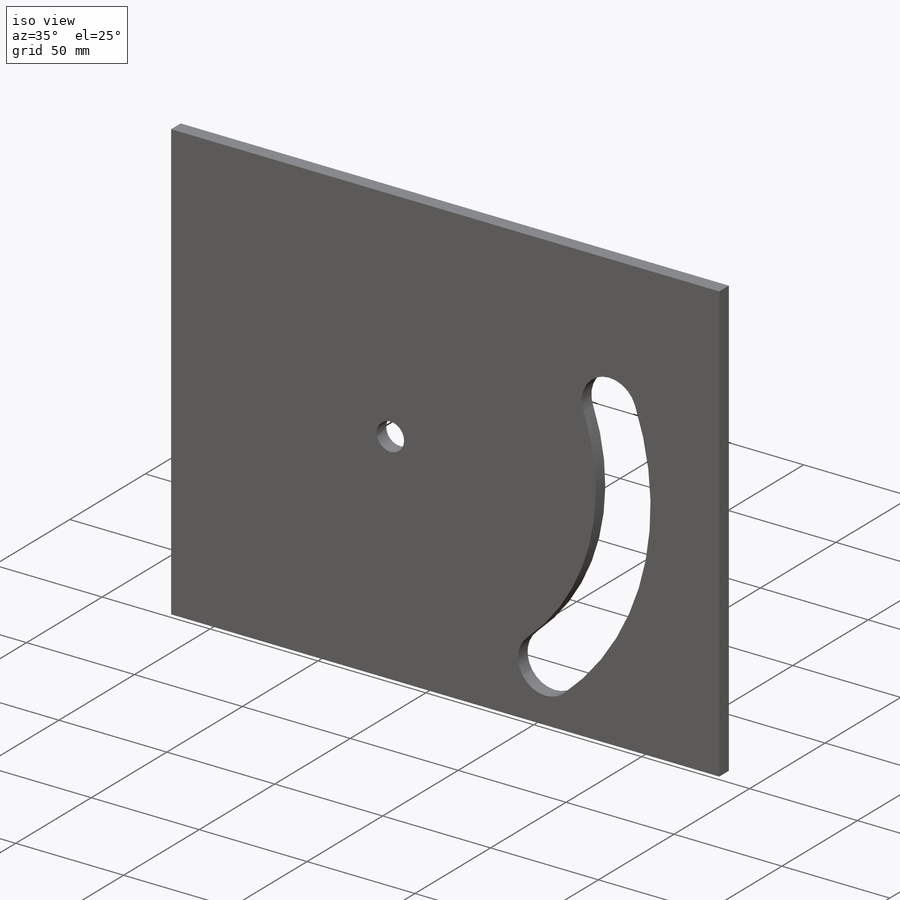
[diagram: iso view]
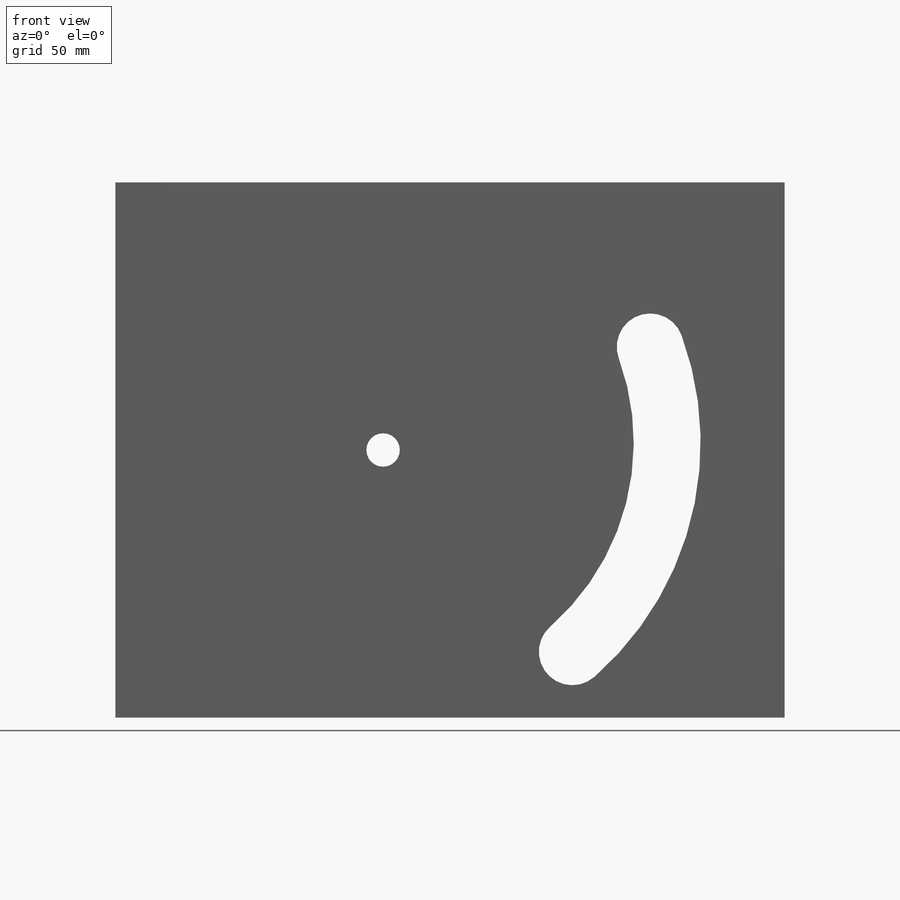
[diagram: front view]
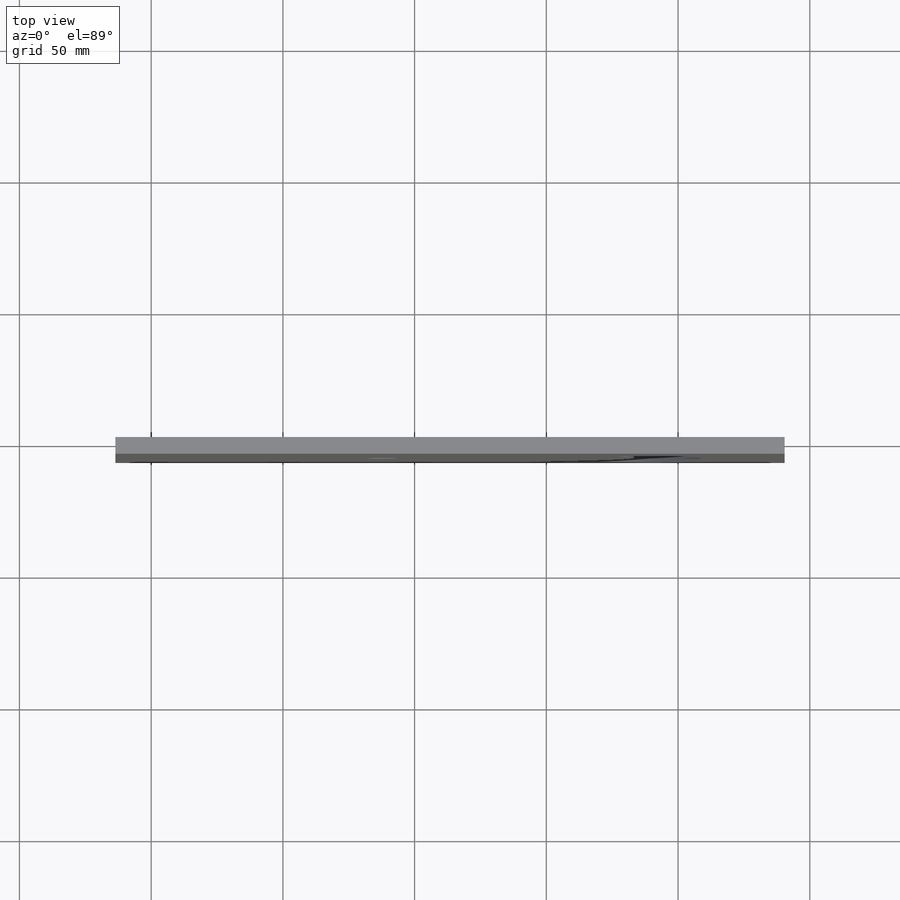
[diagram: top view]
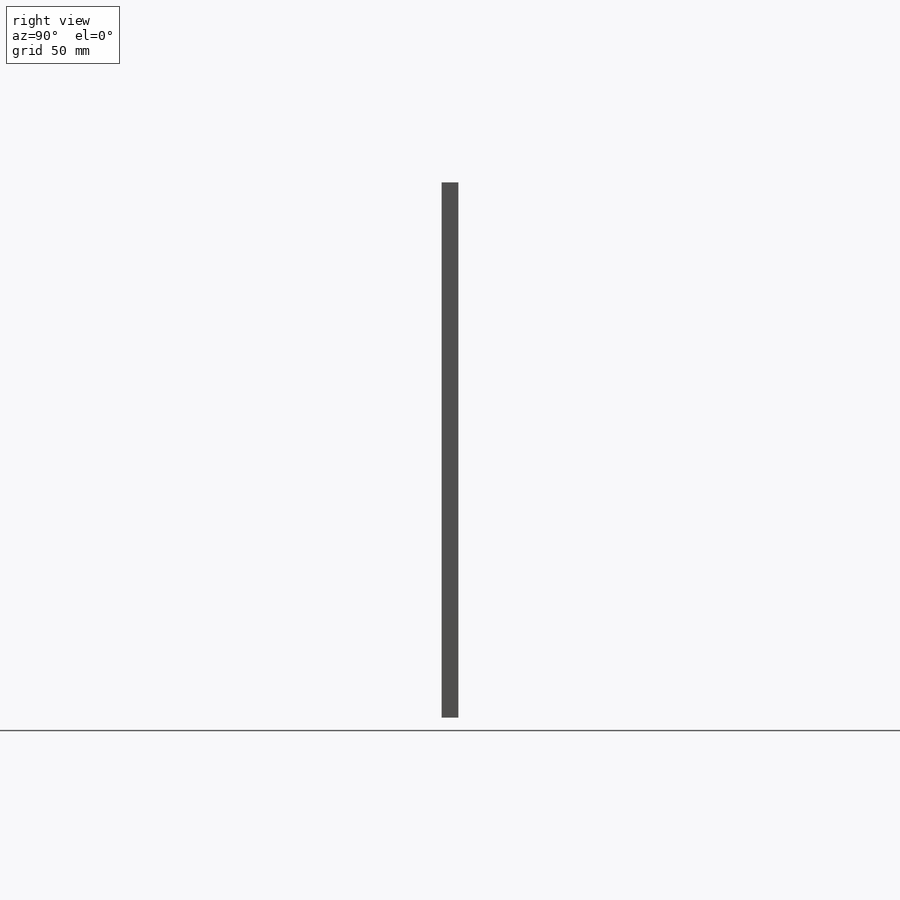
[diagram: right view]
SOLIDWORKS PART (.sldprt)
format: sldprt  version: not decoded by parser v0  size: 192,000 bytes
history: native  units: mm
features: sketch x3, cut_extrude x2, material x1, extrude x1, fillet x1 (+13 scaffold rows collapsed)
feature tree (21):
  scaffold x13  (default folders/planes/origin — collapsed)
  material  "Material <not specified>"
  sketch  "Sketch1"  dims[c1.D2=9.5758mm c1.D4=12.7mm c1.D8=12.7mm c1.D1=~154.475222mm c2.D2=~230.033754mm c2.D1=101.6mm c3.D2=~89.94775mm c3.D3=~18.110708mm c3.D5=101.6mm c3.D6=254.0mm c3.D7=101.6mm]
  extrude  "Boss-Extrude1"  Depth=6.35mm
  sketch  "Sketch4"  dims[c1.D1=~42.262963mm c1.D3=~133.668227mm c2.D1=12.7mm c2.D2=12.7mm]
  cut_extrude  "Cut-Extrude2"  [1 undecoded]
  fillet  "Fillet5"  Radius=12.7mm
  sketch  "Sketch7"  dims[D2=~246.011242mm D3=~291.831518mm D1=0.0mm]
  cut_extrude  "Cut-Extrude5"  Depth=9.525mm
decode coverage: 6 of 7 modeling features carry decoded parameters
note: ~ marks probable driven/reference dimensions
note: 1 parameter value undecoded
note: suppression state not decoded; provenance and decode notes live in map.json
